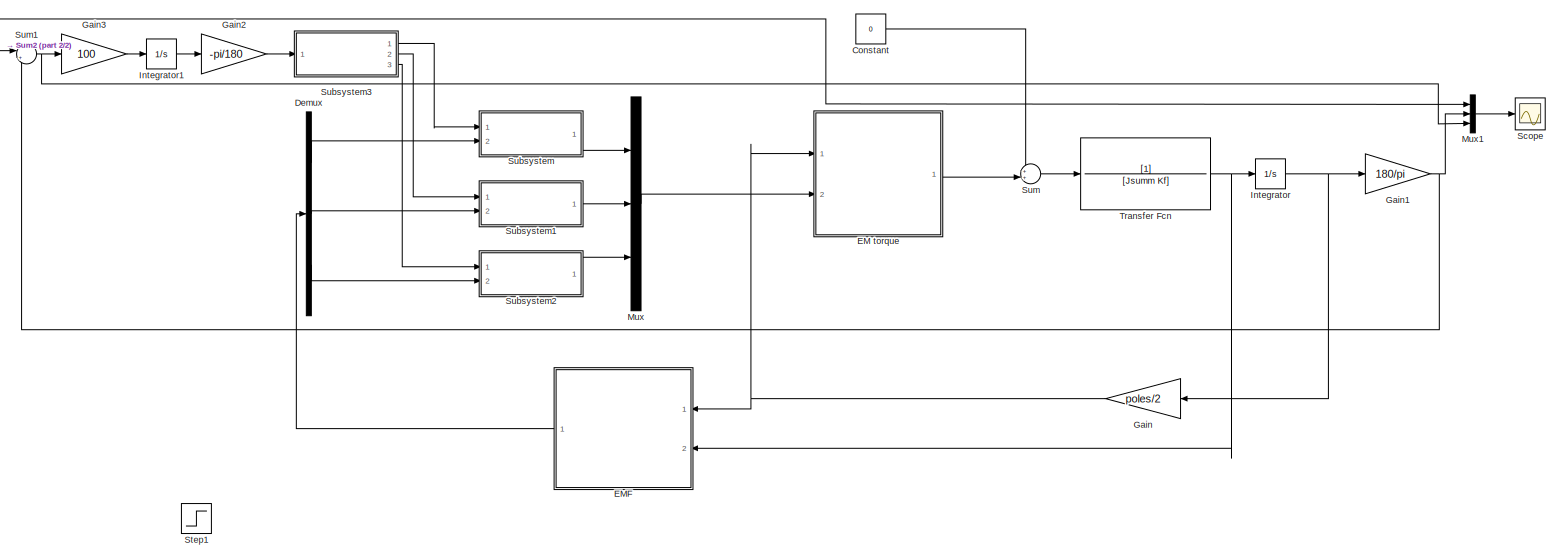
[diagram: root canvas - part 1/2, most of the canvas]
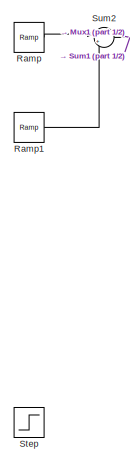
[diagram: root canvas - part 2/2, left side, full height]
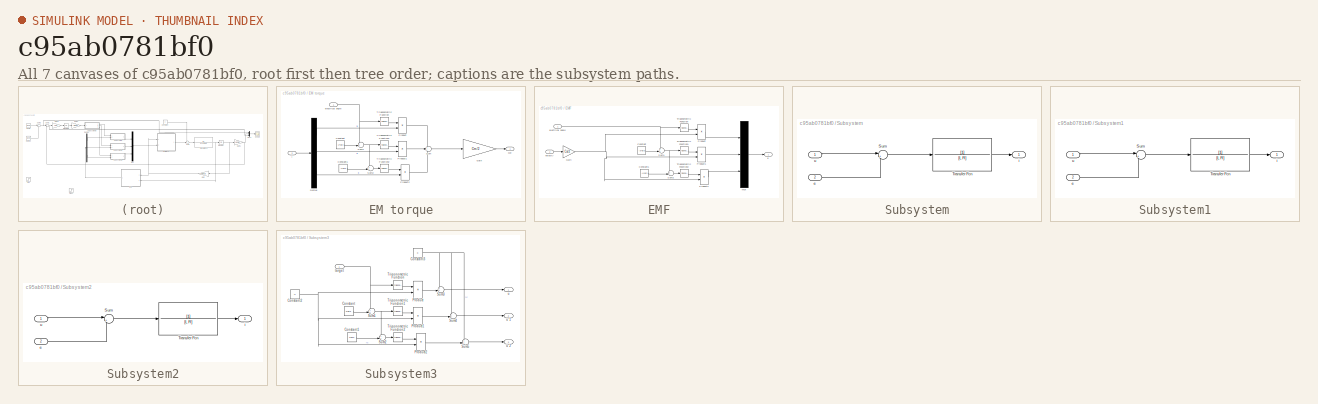
[diagram: thumbnail index - all 7 canvases of the model, root first then tree order]
MODEL slx_c95ab0781bf0
KIND model
CONFIG AbsTol = auto
CONFIG EnableMultiTasking = off
CONFIG FixedStep = auto
CONFIG MaxStep = auto
CONFIG MinStep = auto
CONFIG RelTol = 1e-3
CONFIG SampleTimeConstraint = Unconstrained
CONFIG Solver = VariableStepAuto
CONFIG SolverName = VariableStepAuto
CONFIG StartTime = 0.0
CONFIG StopTime = 2
WORKSPACE source: MAT-file member
WORKSPACE Ce = 0.1
WORKSPACE Kf = 0.1
BLOCK [Constant] Constant
  Value = 0
BLOCK [Demux] Demux
  DisplayOption = bar
  Outputs = 3
  Ports = [1, 3]
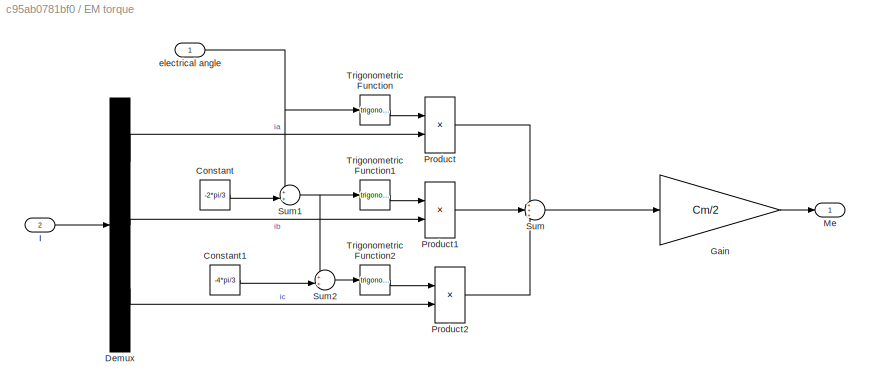
BLOCK [SubSystem] EM torque
  Ports = [2, 1]
  RequestExecContextInheritance = off
BLOCK [Constant] EM torque/Constant
  Value = -2*pi/3
BLOCK [Constant] EM torque/Constant1
  Value = -4*pi/3
BLOCK [Demux] EM torque/Demux
  DisplayOption = bar
  Outputs = 3
  Ports = [1, 3]
BLOCK [Gain] EM torque/Gain
  Gain = Cm/2
  OutDataTypeStr = Inherit: Inherit via internal rule
  ParamDataTypeStr = Inherit: Inherit via internal rule
  SaturateOnIntegerOverflow = off
BLOCK [Inport] EM torque/I
  IconDisplay = Port number
  Port = 2
BLOCK [Outport] EM torque/Me
  IconDisplay = Port number
BLOCK [Product] EM torque/Product
  InputSameDT = off
  OutDataTypeStr = Inherit: Inherit via internal rule
  Ports = [2, 1]
  RndMeth = Floor
  SaturateOnIntegerOverflow = off
BLOCK [Product] EM torque/Product1
  InputSameDT = off
  OutDataTypeStr = Inherit: Inherit via internal rule
  Ports = [2, 1]
  RndMeth = Floor
  SaturateOnIntegerOverflow = off
BLOCK [Product] EM torque/Product2
  InputSameDT = off
  OutDataTypeStr = Inherit: Inherit via internal rule
  Ports = [2, 1]
  RndMeth = Floor
  SaturateOnIntegerOverflow = off
BLOCK [Sum] EM torque/Sum
  IconShape = round
  InputSameDT = off
  Inputs = +++
  OutDataTypeStr = Inherit: Inherit via internal rule
  Ports = [3, 1]
  SaturateOnIntegerOverflow = off
BLOCK [Sum] EM torque/Sum1
  IconShape = round
  InputSameDT = off
  Inputs = ++|
  OutDataTypeStr = Inherit: Inherit via internal rule
  Ports = [2, 1]
  SaturateOnIntegerOverflow = off
BLOCK [Sum] EM torque/Sum2
  IconShape = round
  InputSameDT = off
  Inputs = ++|
  OutDataTypeStr = Inherit: Inherit via internal rule
  Ports = [2, 1]
  SaturateOnIntegerOverflow = off
BLOCK [Trigonometry] EM torque/Trigonometric Function
  Ports = [1, 1]
BLOCK [Trigonometry] EM torque/Trigonometric Function1
  Ports = [1, 1]
BLOCK [Trigonometry] EM torque/Trigonometric Function2
  Ports = [1, 1]
BLOCK [Inport] EM torque/electrical angle
  IconDisplay = Port number
BLOCK [SubSystem] EMF
  Ports = [2, 1]
  RequestExecContextInheritance = off
BLOCK [Constant] EMF/Constant
  Value = -2*pi/3
BLOCK [Constant] EMF/Constant1
  Value = -4*pi/3
BLOCK [Gain] EMF/Gain
  Gain = Ce/2
  OutDataTypeStr = Inherit: Inherit via internal rule
  ParamDataTypeStr = Inherit: Inherit via internal rule
  SaturateOnIntegerOverflow = off
BLOCK [Mux] EMF/Mux
  DisplayOption = bar
  Inputs = 3
  Ports = [3, 1]
BLOCK [Product] EMF/Product
  InputSameDT = off
  OutDataTypeStr = Inherit: Inherit via internal rule
  Ports = [2, 1]
  RndMeth = Floor
  SaturateOnIntegerOverflow = off
BLOCK [Product] EMF/Product1
  InputSameDT = off
  OutDataTypeStr = Inherit: Inherit via internal rule
  Ports = [2, 1]
  RndMeth = Floor
  SaturateOnIntegerOverflow = off
BLOCK [Product] EMF/Product2
  InputSameDT = off
  OutDataTypeStr = Inherit: Inherit via internal rule
  Ports = [2, 1]
  RndMeth = Floor
  SaturateOnIntegerOverflow = off
BLOCK [Sum] EMF/Sum1
  IconShape = round
  InputSameDT = off
  Inputs = ++|
  OutDataTypeStr = Inherit: Inherit via internal rule
  Ports = [2, 1]
  SaturateOnIntegerOverflow = off
BLOCK [Sum] EMF/Sum2
  IconShape = round
  InputSameDT = off
  Inputs = ++|
  OutDataTypeStr = Inherit: Inherit via internal rule
  Ports = [2, 1]
  SaturateOnIntegerOverflow = off
BLOCK [Trigonometry] EMF/Trigonometric Function
  Ports = [1, 1]
BLOCK [Trigonometry] EMF/Trigonometric Function1
  Ports = [1, 1]
BLOCK [Trigonometry] EMF/Trigonometric Function2
  Ports = [1, 1]
BLOCK [Outport] EMF/e
  IconDisplay = Port number
BLOCK [Inport] EMF/electrical angle
  IconDisplay = Port number
BLOCK [Inport] EMF/velocity
  IconDisplay = Port number
  Port = 2
BLOCK [Gain] Gain
  Gain = poles/2
  OutDataTypeStr = Inherit: Inherit via internal rule
  ParamDataTypeStr = Inherit: Inherit via internal rule
  SaturateOnIntegerOverflow = off
BLOCK [Gain] Gain1
  Gain = 180/pi
  OutDataTypeStr = Inherit: Inherit via internal rule
  ParamDataTypeStr = Inherit: Inherit via internal rule
  SaturateOnIntegerOverflow = off
BLOCK [Gain] Gain2
  Gain = -pi/180
  OutDataTypeStr = Inherit: Inherit via internal rule
  ParamDataTypeStr = Inherit: Inherit via internal rule
  SaturateOnIntegerOverflow = off
BLOCK [Gain] Gain3
  Gain = 100
  OutDataTypeStr = Inherit: Inherit via internal rule
  ParamDataTypeStr = Inherit: Inherit via internal rule
  SaturateOnIntegerOverflow = off
BLOCK [Integrator] Integrator
  Ports = [1, 1]
BLOCK [Integrator] Integrator1
  Ports = [1, 1]
BLOCK [Mux] Mux
  DisplayOption = bar
  Inputs = 3
  Ports = [3, 1]
BLOCK [Mux] Mux1
  DisplayOption = bar
  Inputs = 3
  Ports = [3, 1]
BLOCK [Reference] Ramp  REF=simulink/Sources/Ramp
  Ports = [0, 1]
  SourceBlock = simulink/Sources/Ramp
  SourceProductBaseCode = SL
  SourceProductName = Simulink
  SourceType = Ramp
BLOCK [Reference] Ramp1  REF=simulink/Sources/Ramp
  Ports = [0, 1]
  SourceBlock = simulink/Sources/Ramp
  SourceProductBaseCode = SL
  SourceProductName = Simulink
  SourceType = Ramp
BLOCK [Scope] Scope
  Floating = off
  NumInputPorts = 1
  Ports = [1]
  ScopeSpecificationString = Simulink.scopes.TimeScopeBlockCfg('CurrentConfiguration', extmgr.ConfigurationSet(extmgr.Configuration('Core','General UI',true),extmgr.Configuration('Core','Source UI',true),extmgr.Configuration('Sources','WiredSimulink',true),extmgr.Configuration('Visuals','Time Domain',true,'SerializedDisplays',{struct('MinYLimReal','-21.60139','MaxYLimReal','102.40017','YLabelReal','','MinYLimMag','0.00000','M...<+1425ch>
BLOCK [Step] Step
  After = 10
  SampleTime = 0
  Time = 10
BLOCK [Step] Step1
  SampleTime = 0
BLOCK [SubSystem] Subsystem
  Ports = [2, 1]
  RequestExecContextInheritance = off
BLOCK [Sum] Subsystem/Sum
  IconShape = round
  InputSameDT = off
  Inputs = |++
  OutDataTypeStr = Inherit: Inherit via internal rule
  Ports = [2, 1]
  SaturateOnIntegerOverflow = off
BLOCK [TransferFcn] Subsystem/Transfer Fcn
  Denominator = [L R]
BLOCK [Inport] Subsystem/e 
  IconDisplay = Port number
  Port = 2
BLOCK [Outport] Subsystem/i
  IconDisplay = Port number
BLOCK [Inport] Subsystem/u
  IconDisplay = Port number
BLOCK [SubSystem] Subsystem1
  Ports = [2, 1]
  RequestExecContextInheritance = off
BLOCK [Sum] Subsystem1/Sum
  IconShape = round
  InputSameDT = off
  Inputs = |++
  OutDataTypeStr = Inherit: Inherit via internal rule
  Ports = [2, 1]
  SaturateOnIntegerOverflow = off
BLOCK [TransferFcn] Subsystem1/Transfer Fcn
  Denominator = [L R]
BLOCK [Inport] Subsystem1/e 
  IconDisplay = Port number
  Port = 2
BLOCK [Outport] Subsystem1/i
  IconDisplay = Port number
BLOCK [Inport] Subsystem1/u
  IconDisplay = Port number
BLOCK [SubSystem] Subsystem2
  Ports = [2, 1]
  RequestExecContextInheritance = off
BLOCK [Sum] Subsystem2/Sum
  IconShape = round
  InputSameDT = off
  Inputs = |++
  OutDataTypeStr = Inherit: Inherit via internal rule
  Ports = [2, 1]
  SaturateOnIntegerOverflow = off
BLOCK [TransferFcn] Subsystem2/Transfer Fcn
  Denominator = [L R]
BLOCK [Inport] Subsystem2/e 
  IconDisplay = Port number
  Port = 2
BLOCK [Outport] Subsystem2/i
  IconDisplay = Port number
BLOCK [Inport] Subsystem2/u
  IconDisplay = Port number
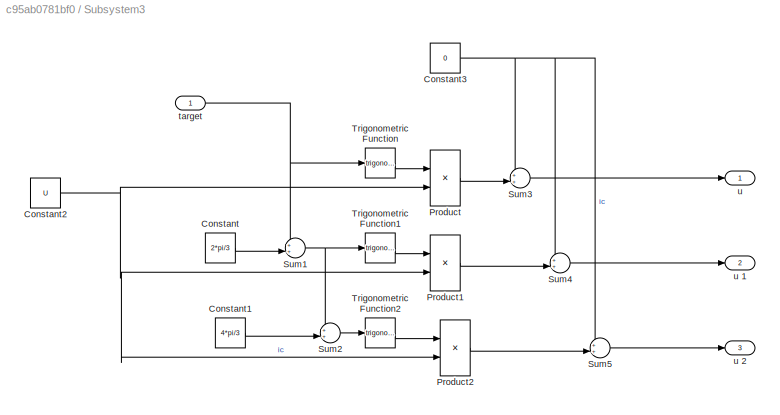
BLOCK [SubSystem] Subsystem3
  Ports = [1, 3]
  RequestExecContextInheritance = off
BLOCK [Constant] Subsystem3/Constant
  Value = 2*pi/3
BLOCK [Constant] Subsystem3/Constant1
  Value = 4*pi/3
BLOCK [Constant] Subsystem3/Constant2
  Value = U
BLOCK [Constant] Subsystem3/Constant3
  Value = 0
BLOCK [Product] Subsystem3/Product
  InputSameDT = off
  OutDataTypeStr = Inherit: Inherit via internal rule
  Ports = [2, 1]
  RndMeth = Floor
  SaturateOnIntegerOverflow = off
BLOCK [Product] Subsystem3/Product1
  InputSameDT = off
  OutDataTypeStr = Inherit: Inherit via internal rule
  Ports = [2, 1]
  RndMeth = Floor
  SaturateOnIntegerOverflow = off
BLOCK [Product] Subsystem3/Product2
  InputSameDT = off
  OutDataTypeStr = Inherit: Inherit via internal rule
  Ports = [2, 1]
  RndMeth = Floor
  SaturateOnIntegerOverflow = off
BLOCK [Sum] Subsystem3/Sum1
  IconShape = round
  InputSameDT = off
  Inputs = ++|
  OutDataTypeStr = Inherit: Inherit via internal rule
  Ports = [2, 1]
  SaturateOnIntegerOverflow = off
BLOCK [Sum] Subsystem3/Sum2
  IconShape = round
  InputSameDT = off
  Inputs = ++|
  OutDataTypeStr = Inherit: Inherit via internal rule
  Ports = [2, 1]
  SaturateOnIntegerOverflow = off
BLOCK [Sum] Subsystem3/Sum3
  IconShape = round
  InputSameDT = off
  Inputs = ++|
  OutDataTypeStr = Inherit: Inherit via internal rule
  Ports = [2, 1]
  SaturateOnIntegerOverflow = off
BLOCK [Sum] Subsystem3/Sum4
  IconShape = round
  InputSameDT = off
  Inputs = ++|
  OutDataTypeStr = Inherit: Inherit via internal rule
  Ports = [2, 1]
  SaturateOnIntegerOverflow = off
BLOCK [Sum] Subsystem3/Sum5
  IconShape = round
  InputSameDT = off
  Inputs = ++|
  OutDataTypeStr = Inherit: Inherit via internal rule
  Ports = [2, 1]
  SaturateOnIntegerOverflow = off
BLOCK [Trigonometry] Subsystem3/Trigonometric Function
  Ports = [1, 1]
BLOCK [Trigonometry] Subsystem3/Trigonometric Function1
  Ports = [1, 1]
BLOCK [Trigonometry] Subsystem3/Trigonometric Function2
  Ports = [1, 1]
BLOCK [Inport] Subsystem3/target
  IconDisplay = Port number
BLOCK [Outport] Subsystem3/u 
  IconDisplay = Port number
BLOCK [Outport] Subsystem3/u 1
  IconDisplay = Port number
  Port = 2
BLOCK [Outport] Subsystem3/u 2
  IconDisplay = Port number
  Port = 3
BLOCK [Sum] Sum
  IconShape = round
  InputSameDT = off
  Inputs = ++|
  OutDataTypeStr = Inherit: Inherit via internal rule
  Ports = [2, 1]
  SaturateOnIntegerOverflow = off
BLOCK [Sum] Sum1
  IconShape = round
  InputSameDT = off
  Inputs = |+-
  OutDataTypeStr = Inherit: Inherit via internal rule
  Ports = [2, 1]
  SaturateOnIntegerOverflow = off
BLOCK [Sum] Sum2
  IconShape = round
  InputSameDT = off
  Inputs = |++
  OutDataTypeStr = Inherit: Inherit via internal rule
  Ports = [2, 1]
  SaturateOnIntegerOverflow = off
BLOCK [TransferFcn] Transfer Fcn
  Denominator = [Jsumm Kf]
LINE Constant:1 -> Sum:1
LINE Demux:1 -> Subsystem:2
LINE Demux:2 -> Subsystem1:2
LINE Demux:3 -> Subsystem2:2
LINE EM torque/Constant1:1 -> EM torque/Sum2:2
LINE EM torque/Constant:1 -> EM torque/Sum1:2
LINE EM torque/Demux:1 -> EM torque/Product:2
LINE EM torque/Demux:2 -> EM torque/Product1:2
LINE EM torque/Demux:3 -> EM torque/Product2:2
LINE EM torque/Gain:1 -> EM torque/Me:1
LINE EM torque/I:1 -> EM torque/Demux:1
LINE EM torque/Product1:1 -> EM torque/Sum:2
LINE EM torque/Product2:1 -> EM torque/Sum:3
LINE EM torque/Product:1 -> EM torque/Sum:1
NET EM torque/Sum1:1 -> EM torque/Sum2:1, EM torque/Trigonometric Function1:1
LINE EM torque/Sum2:1 -> EM torque/Trigonometric Function2:1
LINE EM torque/Sum:1 -> EM torque/Gain:1
LINE EM torque/Trigonometric Function1:1 -> EM torque/Product1:1
LINE EM torque/Trigonometric Function2:1 -> EM torque/Product2:1
LINE EM torque/Trigonometric Function:1 -> EM torque/Product:1
NET EM torque/electrical angle:1 -> EM torque/Sum1:1, EM torque/Trigonometric Function:1
LINE EM torque:1 -> Sum:2
LINE EMF/Constant1:1 -> EMF/Sum2:2
LINE EMF/Constant:1 -> EMF/Sum1:2
NET EMF/Gain:1 -> EMF/Product1:2, EMF/Product2:2, EMF/Product:2
LINE EMF/Mux:1 -> EMF/e:1
LINE EMF/Product1:1 -> EMF/Mux:2
LINE EMF/Product2:1 -> EMF/Mux:3
LINE EMF/Product:1 -> EMF/Mux:1
NET EMF/Sum1:1 -> EMF/Sum2:1, EMF/Trigonometric Function1:1
LINE EMF/Sum2:1 -> EMF/Trigonometric Function2:1
LINE EMF/Trigonometric Function1:1 -> EMF/Product1:1
LINE EMF/Trigonometric Function2:1 -> EMF/Product2:1
LINE EMF/Trigonometric Function:1 -> EMF/Product:1
NET EMF/electrical angle:1 -> EMF/Sum1:1, EMF/Trigonometric Function:1
LINE EMF/velocity:1 -> EMF/Gain:1
LINE EMF:1 -> Demux:1
NET Gain1:1 -> Mux1:2, Sum1:2
LINE Gain2:1 -> Subsystem3:1
LINE Gain3:1 -> Integrator1:1
NET Gain:1 -> EM torque:1, EMF:1
LINE Integrator1:1 -> Gain2:1
NET Integrator:1 -> Gain1:1, Gain:1
LINE Mux1:1 -> Scope:1
LINE Mux:1 -> EM torque:2
LINE Ramp1:1 -> Sum2:2
LINE Ramp:1 -> Sum2:1
LINE Subsystem/Sum:1 -> Subsystem/Transfer Fcn:1
LINE Subsystem/Transfer Fcn:1 -> Subsystem/i:1
LINE Subsystem/e :1 -> Subsystem/Sum:2
LINE Subsystem/u:1 -> Subsystem/Sum:1
LINE Subsystem1/Sum:1 -> Subsystem1/Transfer Fcn:1
LINE Subsystem1/Transfer Fcn:1 -> Subsystem1/i:1
LINE Subsystem1/e :1 -> Subsystem1/Sum:2
LINE Subsystem1/u:1 -> Subsystem1/Sum:1
LINE Subsystem1:1 -> Mux:2
LINE Subsystem2/Sum:1 -> Subsystem2/Transfer Fcn:1
LINE Subsystem2/Transfer Fcn:1 -> Subsystem2/i:1
LINE Subsystem2/e :1 -> Subsystem2/Sum:2
LINE Subsystem2/u:1 -> Subsystem2/Sum:1
LINE Subsystem2:1 -> Mux:3
LINE Subsystem3/Constant1:1 -> Subsystem3/Sum2:2
NET Subsystem3/Constant2:1 -> Subsystem3/Product1:2, Subsystem3/Product2:2, Subsystem3/Product:2
NET Subsystem3/Constant3:1 -> Subsystem3/Sum3:1, Subsystem3/Sum4:1, Subsystem3/Sum5:1
LINE Subsystem3/Constant:1 -> Subsystem3/Sum1:2
LINE Subsystem3/Product1:1 -> Subsystem3/Sum4:2
LINE Subsystem3/Product2:1 -> Subsystem3/Sum5:2
LINE Subsystem3/Product:1 -> Subsystem3/Sum3:2
NET Subsystem3/Sum1:1 -> Subsystem3/Sum2:1, Subsystem3/Trigonometric Function1:1
LINE Subsystem3/Sum2:1 -> Subsystem3/Trigonometric Function2:1
LINE Subsystem3/Sum3:1 -> Subsystem3/u :1
LINE Subsystem3/Sum4:1 -> Subsystem3/u 1:1
LINE Subsystem3/Sum5:1 -> Subsystem3/u 2:1
LINE Subsystem3/Trigonometric Function1:1 -> Subsystem3/Product1:1
LINE Subsystem3/Trigonometric Function2:1 -> Subsystem3/Product2:1
LINE Subsystem3/Trigonometric Function:1 -> Subsystem3/Product:1
NET Subsystem3/target:1 -> Subsystem3/Sum1:1, Subsystem3/Trigonometric Function:1
LINE Subsystem3:1 -> Subsystem:1
LINE Subsystem3:2 -> Subsystem1:1
LINE Subsystem3:3 -> Subsystem2:1
LINE Subsystem:1 -> Mux:1
NET Sum1:1 -> Gain3:1, Mux1:3
NET Sum2:1 -> Mux1:1, Sum1:1
LINE Sum:1 -> Transfer Fcn:1
NET Transfer Fcn:1 -> EMF:2, Integrator:1
note: NET lines group one-source signal fan-out (src -> all destinations, sorted); 1:1 wires keep LINE
